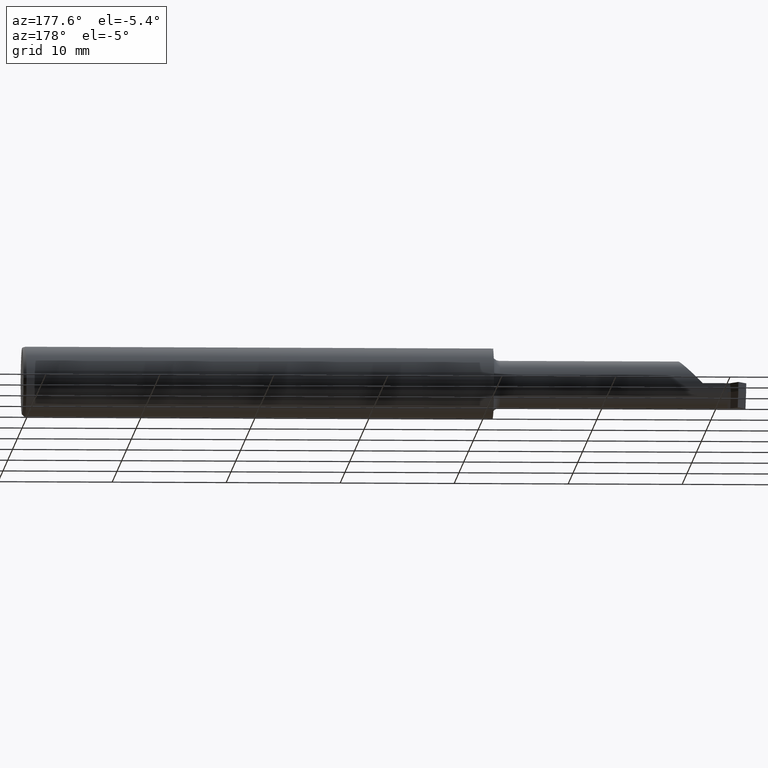
[diagram: clean part render]
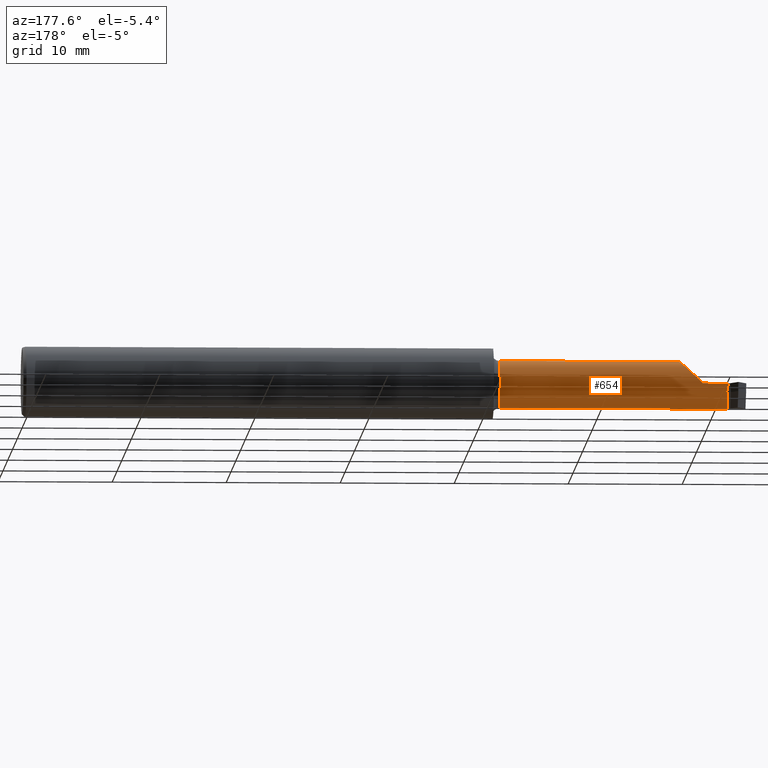
[diagram: same view with one face highlighted and labeled with its STEP entity id]
A machine part, auxiliary view. The second image highlights one B-rep face of the part: STEP entity #654.
In plain terms, the highlighted cylindrical surface (edge-blend (fillet) strip) has radius 2.0828 mm, axis along (-1, -0, -0).
Its self-contained STEP definition (entity closure, byte-faithful):
#11 = VECTOR ( 'NONE', #809, 39.37007874015748143 ) ;
#27 = CARTESIAN_POINT ( 'NONE',  ( -2.289520233285355921, -0.1092232590529247510, 0.06047976671464364712 ) ) ;
#29 = CARTESIAN_POINT ( 'NONE',  ( -2.500000000000000000, -0.05385000000000019632, 0.000000000000000000 ) ) ;
#40 = CARTESIAN_POINT ( 'NONE',  ( -2.350000000000000089, 0.02814999999999987651, 0.000000000000000000 ) ) ;
#44 = CARTESIAN_POINT ( 'NONE',  ( -1.650000000000000133, -0.1092232590529247510, 0.06047976671464379284 ) ) ;
#47 = DIRECTION ( 'NONE',  ( -1.000000000000000000, -1.553500558300393421E-17, -0.000000000000000000 ) ) ;
#51 = DIRECTION ( 'NONE',  ( 1.000000000000000000, 1.553500558300393113E-17, -0.000000000000000000 ) ) ;
#55 = CIRCLE ( 'NONE', #675, 0.08199999999999996181 ) ;
#64 = CARTESIAN_POINT ( 'NONE',  ( -2.044384618943233534, -0.1092232590529246816, 0.06047976671464370957 ) ) ;
#65 = VERTEX_POINT ( 'NONE', #502 ) ;
#67 = CARTESIAN_POINT ( 'NONE',  ( -2.436521776989250210, 0.02814999999999987651, -0.01104662323101167354 ) ) ;
#75 = CARTESIAN_POINT ( 'NONE',  ( -2.432250635869566135, 0.02163139798309859571, -0.03203995253612494654 ) ) ;
#86 = EDGE_CURVE ( 'NONE', #240, #152, #635, .T. ) ;
#95 = DIRECTION ( 'NONE',  ( 0.000000000000000000, -1.000000000000000000, 0.000000000000000000 ) ) ;
#117 = ORIENTED_EDGE ( 'NONE', *, *, #86, .F. ) ;
#123 = CARTESIAN_POINT ( 'NONE',  ( -2.044384618943233534, -0.1092232590529246816, -0.06047976671464370957 ) ) ;
#131 = CARTESIAN_POINT ( 'NONE',  ( -2.289520233285355921, -0.1092232590529247510, 0.06047976671464364712 ) ) ;
#134 = CARTESIAN_POINT ( 'NONE',  ( -2.500000000000000000, -0.1092232590529249175, -0.06047976671464343895 ) ) ;
#136 = CARTESIAN_POINT ( 'NONE',  ( -1.650000000000000133, -0.1092232590529247510, -0.06047976671464379977 ) ) ;
#152 = VERTEX_POINT ( 'NONE', #175 ) ;
#157 = ORIENTED_EDGE ( 'NONE', *, *, #287, .T. ) ;
#173 = EDGE_CURVE ( 'NONE', #834, #794, #316, .T. ) ;
#174 = DIRECTION ( 'NONE',  ( 0.000000000000000000, -1.000000000000000000, 0.000000000000000000 ) ) ;
#175 = CARTESIAN_POINT ( 'NONE',  ( -2.500000000000000000, -0.05385000000000018938, -0.08200000000000000344 ) ) ;
#179 = DIRECTION ( 'NONE',  ( -1.000000000000000000, -1.301231752219315598E-17, -0.000000000000000000 ) ) ;
#183 = CARTESIAN_POINT ( 'NONE',  ( -2.436542191595147067, 0.02163139798309951858, -0.03203995253612259425 ) ) ;
#186 = VECTOR ( 'NONE', #650, 39.37007874015748143 ) ;
#191 = EDGE_CURVE ( 'NONE', #65, #834, #213, .T. ) ;
#202 = CIRCLE ( 'NONE', #315, 0.08200000000000014222 ) ;
#207 = VERTEX_POINT ( 'NONE', #739 ) ;
#213 =( BOUNDED_CURVE ( )  B_SPLINE_CURVE ( 3, ( #663, #67, #806, #333 ),
 .UNSPECIFIED., .F., .T. ) 
 B_SPLINE_CURVE_WITH_KNOTS ( ( 4, 4 ),
 ( 1.570796326794896780, 1.972222054753649534 ),
 .UNSPECIFIED. ) 
 CURVE ( )  GEOMETRIC_REPRESENTATION_ITEM ( )  RATIONAL_B_SPLINE_CURVE ( ( 1.000000000000000000, 0.9866164697472159517, 0.9866164697472159517, 1.000000000000000000 ) ) 
 REPRESENTATION_ITEM ( '' )  );
#215 = VECTOR ( 'NONE', #47, 39.37007874015748143 ) ;
#231 = VECTOR ( 'NONE', #820, 39.37007874015748143 ) ;
#238 = EDGE_CURVE ( 'NONE', #368, #864, #269, .T. ) ;
#240 = VERTEX_POINT ( 'NONE', #600 ) ;
#269 = LINE ( 'NONE', #64, #578 ) ;
#271 = VERTEX_POINT ( 'NONE', #136 ) ;
#273 = VERTEX_POINT ( 'NONE', #404 ) ;
#285 = EDGE_CURVE ( 'NONE', #368, #271, #202, .T. ) ;
#287 = EDGE_CURVE ( 'NONE', #446, #864, #762, .T. ) ;
#314 = CIRCLE ( 'NONE', #395, 0.08200000000000000344 ) ;
#315 = AXIS2_PLACEMENT_3D ( 'NONE', #676, #348, #95 ) ;
#316 = LINE ( 'NONE', #325, #748 ) ;
#325 = CARTESIAN_POINT ( 'NONE',  ( -2.500000000000001332, 0.02163139798309812387, -0.03203995253612482857 ) ) ;
#328 = AXIS2_PLACEMENT_3D ( 'NONE', #29, #634, #386 ) ;
#333 = CARTESIAN_POINT ( 'NONE',  ( -2.432250635869566135, 0.02163139798309859571, -0.03203995253612494654 ) ) ;
#347 = CARTESIAN_POINT ( 'NONE',  ( -2.500000000000000000, -0.05385000000000021020, 0.000000000000000000 ) ) ;
#348 = DIRECTION ( 'NONE',  ( -1.000000000000000000, -1.301231752219315598E-17, -0.000000000000000000 ) ) ;
#368 = VERTEX_POINT ( 'NONE', #44 ) ;
#386 = DIRECTION ( 'NONE',  ( 0.000000000000000000, -1.000000000000000000, 0.000000000000000000 ) ) ;
#392 = ORIENTED_EDGE ( 'NONE', *, *, #861, .T. ) ;
#395 = AXIS2_PLACEMENT_3D ( 'NONE', #347, #51, #674 ) ;
#399 = EDGE_CURVE ( 'NONE', #207, #794, #434, .T. ) ;
#404 = CARTESIAN_POINT ( 'NONE',  ( -2.438769237886466712, -0.02453410292290364100, -0.07658053394019313787 ) ) ;
#434 = CIRCLE ( 'NONE', #548, 0.08200000000000005895 ) ;
#446 = VERTEX_POINT ( 'NONE', #859 ) ;
#449 = CYLINDRICAL_SURFACE ( 'NONE', #328, 0.08200000000000005895 ) ;
#454 = ORIENTED_EDGE ( 'NONE', *, *, #399, .T. ) ;
#502 = CARTESIAN_POINT ( 'NONE',  ( -2.438769237886466712, 0.02814999999999973773, 0.000000000000000000 ) ) ;
#510 = CARTESIAN_POINT ( 'NONE',  ( -2.438769237886466712, -0.05385000000000019632, 0.000000000000000000 ) ) ;
#511 = DIRECTION ( 'NONE',  ( -1.000000000000000000, -1.301231752219315598E-17, -0.000000000000000000 ) ) ;
#512 = EDGE_LOOP ( 'NONE', ( #392, #454, #664, #598, #543, #157, #868, #536, #636, #858, #117, #753 ) ) ;
#517 = CARTESIAN_POINT ( 'NONE',  ( -2.436542191595147067, -0.05385000000000019632, 0.000000000000000000 ) ) ;
#525 = EDGE_CURVE ( 'NONE', #65, #446, #698, .T. ) ;
#536 = ORIENTED_EDGE ( 'NONE', *, *, #285, .T. ) ;
#543 = ORIENTED_EDGE ( 'NONE', *, *, #525, .T. ) ;
#548 = AXIS2_PLACEMENT_3D ( 'NONE', #517, #658, #785 ) ;
#572 = LINE ( 'NONE', #123, #186 ) ;
#578 = VECTOR ( 'NONE', #656, 39.37007874015748143 ) ;
#596 = CARTESIAN_POINT ( 'NONE',  ( -2.500000000000000000, -0.02453410292290388733, -0.07658053394019334603 ) ) ;
#598 = ORIENTED_EDGE ( 'NONE', *, *, #191, .F. ) ;
#600 = CARTESIAN_POINT ( 'NONE',  ( -2.438769237886466712, -0.05385000000000018938, -0.08200000000000000344 ) ) ;
#630 = CARTESIAN_POINT ( 'NONE',  ( -2.266883813472911680, 0.02814999999999986957, 0.08311618652708725741 ) ) ;
#634 = DIRECTION ( 'NONE',  ( -1.000000000000000000, -1.301231752219315598E-17, -0.000000000000000000 ) ) ;
#635 = LINE ( 'NONE', #651, #215 ) ;
#636 = ORIENTED_EDGE ( 'NONE', *, *, #702, .F. ) ;
#650 = DIRECTION ( 'NONE',  ( 1.000000000000000000, 1.301231752219315598E-17, 0.000000000000000000 ) ) ;
#651 = CARTESIAN_POINT ( 'NONE',  ( -2.425000000000000266, -0.05385000000000018938, -0.08200000000000000344 ) ) ;
#654 = ADVANCED_FACE ( 'NONE', ( #840 ), #449, .T. ) ;
#656 = DIRECTION ( 'NONE',  ( -1.000000000000000000, -1.301231752219315598E-17, -0.000000000000000000 ) ) ;
#658 = DIRECTION ( 'NONE',  ( 1.000000000000000000, -0.000000000000000000, 0.000000000000000000 ) ) ;
#663 = CARTESIAN_POINT ( 'NONE',  ( -2.438769237886466712, 0.02814999999999973773, 0.000000000000000000 ) ) ;
#664 = ORIENTED_EDGE ( 'NONE', *, *, #173, .F. ) ;
#674 = DIRECTION ( 'NONE',  ( 0.000000000000000000, -1.000000000000000000, 0.000000000000000000 ) ) ;
#675 = AXIS2_PLACEMENT_3D ( 'NONE', #510, #179, #174 ) ;
#676 = CARTESIAN_POINT ( 'NONE',  ( -1.650000000000000133, -0.05385000000000018938, 0.000000000000000000 ) ) ;
#695 = CARTESIAN_POINT ( 'NONE',  ( -2.233393231723701522, -0.04792023988988770161, 0.1166067682762972485 ) ) ;
#698 = LINE ( 'NONE', #752, #231 ) ;
#702 = EDGE_CURVE ( 'NONE', #813, #271, #572, .T. ) ;
#706 = EDGE_CURVE ( 'NONE', #273, #240, #55, .T. ) ;
#737 = LINE ( 'NONE', #596, #11 ) ;
#739 = CARTESIAN_POINT ( 'NONE',  ( -2.436542191595147067, -0.02453410292290377631, -0.07658053394019324889 ) ) ;
#748 = VECTOR ( 'NONE', #511, 39.37007874015748143 ) ;
#752 = CARTESIAN_POINT ( 'NONE',  ( -2.500000000000000000, 0.02814999999999985916, 8.875653457662611807E-19 ) ) ;
#753 = ORIENTED_EDGE ( 'NONE', *, *, #706, .F. ) ;
#762 =( BOUNDED_CURVE ( )  B_SPLINE_CURVE ( 3, ( #40, #630, #695, #27 ),
 .UNSPECIFIED., .F., .T. ) 
 B_SPLINE_CURVE_WITH_KNOTS ( ( 4, 4 ),
 ( 1.570796326794896558, 3.882941863891805401 ),
 .UNSPECIFIED. ) 
 CURVE ( )  GEOMETRIC_REPRESENTATION_ITEM ( )  RATIONAL_B_SPLINE_CURVE ( ( 1.000000000000000000, 0.6019579590817373260, 0.6019579590817373260, 1.000000000000000000 ) ) 
 REPRESENTATION_ITEM ( '' )  );
#785 = DIRECTION ( 'NONE',  ( 0.000000000000000000, 1.769871032480657047E-15, 1.000000000000000000 ) ) ;
#794 = VERTEX_POINT ( 'NONE', #183 ) ;
#806 = CARTESIAN_POINT ( 'NONE',  ( -2.434319434533398496, 0.02594765754414774667, -0.02187148223771830796 ) ) ;
#809 = DIRECTION ( 'NONE',  ( 1.000000000000000000, 1.301231752219315598E-17, 0.000000000000000000 ) ) ;
#813 = VERTEX_POINT ( 'NONE', #134 ) ;
#820 = DIRECTION ( 'NONE',  ( 1.000000000000000000, 1.301231752219315598E-17, 0.000000000000000000 ) ) ;
#834 = VERTEX_POINT ( 'NONE', #75 ) ;
#840 = FACE_OUTER_BOUND ( 'NONE', #512, .T. ) ;
#856 = EDGE_CURVE ( 'NONE', #813, #152, #314, .T. ) ;
#858 = ORIENTED_EDGE ( 'NONE', *, *, #856, .T. ) ;
#859 = CARTESIAN_POINT ( 'NONE',  ( -2.350000000000000089, 0.02814999999999987651, 0.000000000000000000 ) ) ;
#861 = EDGE_CURVE ( 'NONE', #273, #207, #737, .T. ) ;
#864 = VERTEX_POINT ( 'NONE', #131 ) ;
#868 = ORIENTED_EDGE ( 'NONE', *, *, #238, .F. ) ;